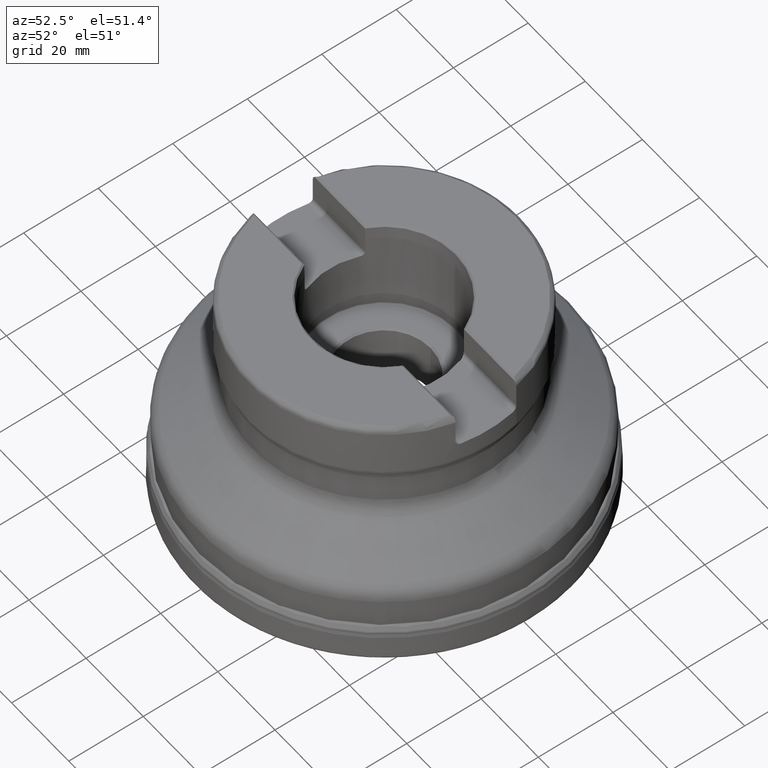
[diagram: clean part render]
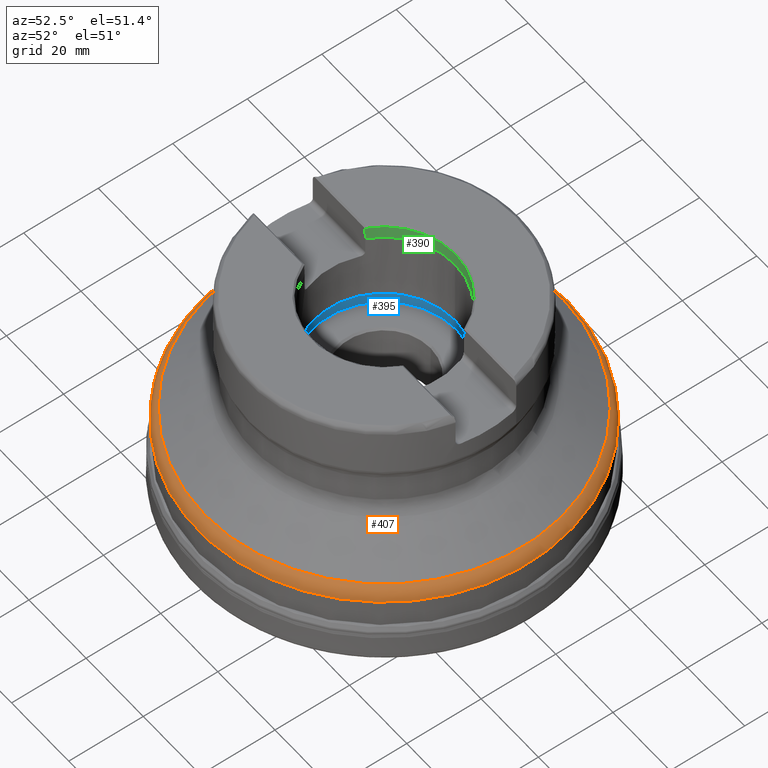
[diagram: same view with three faces highlighted in distinct colors, each labeled with its STEP entity id]
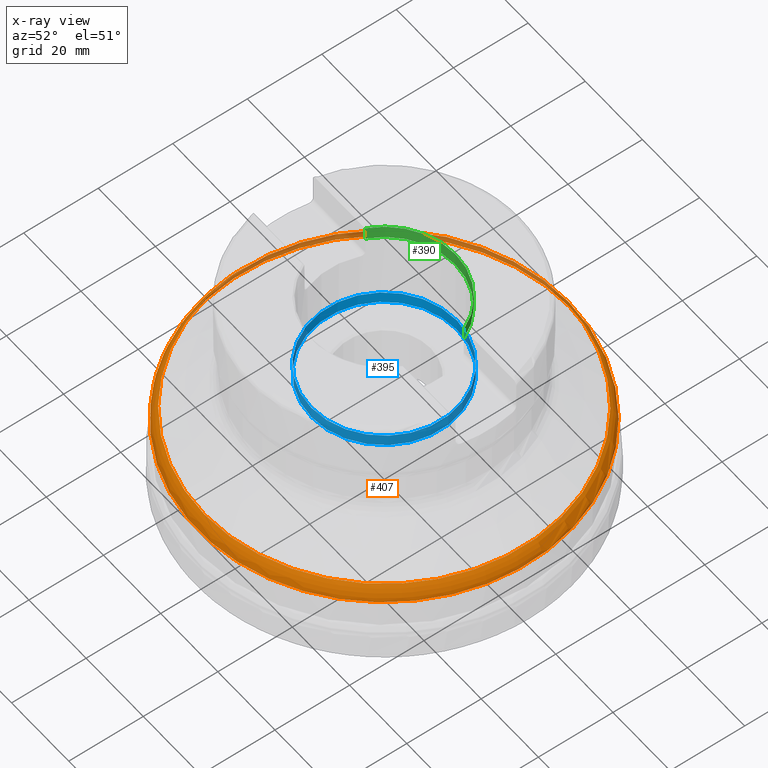
[diagram: x-ray of the same camera — body ghosted, the three highlighted faces saturated]
A machine part, auxiliary view with three faces highlighted in distinct colors.
The next image is the same camera in x-ray (body ghosted, the three faces saturated) — at least one of them is partly hidden behind the body in this view.
Their STEP definitions:

[orange] entity #407 — the highlighted toroidal blend (fillet) surface has major radius 44.9305 mm and minor (blend) radius 5 mm.
#220=FACE_BOUND('',#546,.T.);
#221=FACE_BOUND('',#547,.T.);
#407=ADVANCED_FACE('',(#220,#221),#448,.T.);
#448=TOROIDAL_SURFACE('',#1288,44.9304962185354,5.);
#546=EDGE_LOOP('',(#845));
#547=EDGE_LOOP('',(#846));
#618=CIRCLE('',#1223,48.1444342669681);
#619=CIRCLE('',#1225,49.9276385060247);
#845=ORIENTED_EDGE('',*,*,#1052,.F.);
#846=ORIENTED_EDGE('',*,*,#1053,.F.);
#945=VERTEX_POINT('',#2075);
#946=VERTEX_POINT('',#2078);
#1052=EDGE_CURVE('',#945,#945,#618,.T.);
#1053=EDGE_CURVE('',#946,#946,#619,.T.);
#1223=AXIS2_PLACEMENT_3D('',#2074,#1388,#1389);
#1225=AXIS2_PLACEMENT_3D('',#2077,#1392,#1393);
#1288=AXIS2_PLACEMENT_3D('',#2286,#1530,#1531);
#1388=DIRECTION('',(0.,1.17145536458252E-15,1.));
#1389=DIRECTION('',(0.,-1.,1.15301284720556E-15));
#1392=DIRECTION('',(0.,-1.17145536458252E-15,-1.));
#1393=DIRECTION('',(0.,1.,-1.18132160759204E-15));
#1530=DIRECTION('',(0.,1.17145536458252E-15,1.));
#1531=DIRECTION('',(0.,-1.,1.18125399605615E-15));
#2074=CARTESIAN_POINT('',(0.,2.60828798959362E-14,22.26536382394));
#2075=CARTESIAN_POINT('',(0.,-48.1444342669681,22.26536382394));
#2077=CARTESIAN_POINT('',(0.,2.13979419960202E-14,18.2661180638717));
#2078=CARTESIAN_POINT('',(0.,49.9276385060247,18.2661180638716));
#2286=CARTESIAN_POINT('',(0.,2.15959455339344E-14,18.4351416083451));

[blue] entity #395 — the highlighted cylindrical surface (bore or boss wall) has radius 19.55 mm, axis along (-0, -0, -1).
#167=CYLINDRICAL_SURFACE('',#1274,19.55);
#196=FACE_BOUND('',#522,.T.);
#197=FACE_BOUND('',#523,.T.);
#395=ADVANCED_FACE('',(#196,#197),#167,.F.);
#522=EDGE_LOOP('',(#821));
#523=EDGE_LOOP('',(#822));
#643=CIRCLE('',#1272,19.55);
#644=CIRCLE('',#1273,19.55);
#821=ORIENTED_EDGE('',*,*,#1097,.T.);
#822=ORIENTED_EDGE('',*,*,#1098,.T.);
#978=VERTEX_POINT('',#2267);
#979=VERTEX_POINT('',#2269);
#1097=EDGE_CURVE('',#978,#978,#643,.T.);
#1098=EDGE_CURVE('',#979,#979,#644,.T.);
#1272=AXIS2_PLACEMENT_3D('',#2266,#1498,#1499);
#1273=AXIS2_PLACEMENT_3D('',#2268,#1500,#1501);
#1274=AXIS2_PLACEMENT_3D('',#2270,#1502,#1503);
#1498=DIRECTION('',(4.47319432837584E-16,1.56003342320133E-15,1.));
#1499=DIRECTION('',(1.08268785724004E-15,-1.,1.41972253788383E-15));
#1500=DIRECTION('',(-4.47319432837584E-16,-1.56003342320133E-15,-1.));
#1501=DIRECTION('',(-1.08268785724004E-15,1.,-1.41972253788383E-15));
#1502=DIRECTION('',(-4.47319432837584E-16,-1.56003342320133E-15,-1.));
#1503=DIRECTION('',(-1.08268785724004E-15,1.,-1.56003342320133E-15));
#2266=CARTESIAN_POINT('',(1.65512663344235E-14,5.77227966918723E-14,37.001));
#2267=CARTESIAN_POINT('',(3.77178139434663E-14,-19.5499999999999,37.001));
#2268=CARTESIAN_POINT('',(1.51198441493432E-14,5.27306897376281E-14,33.801));
#2269=CARTESIAN_POINT('',(-6.04670345969965E-15,19.5500000000001,33.801));
#2270=CARTESIAN_POINT('',(0.,0.,0.));

[green] entity #390 — the highlighted conical surface has half-angle 1.5 deg.
#281=CONICAL_SURFACE('',#1261,19.05,1.5);
#303=ELLIPSE('',#1201,26.7835999634305,18.9323708317608);
#304=ELLIPSE('',#1206,26.7835999634305,18.9323708317608);
#390=ADVANCED_FACE('',(#470),#281,.F.);
#470=FACE_OUTER_BOUND('',#514,.T.);
#514=EDGE_LOOP('',(#803,#804,#805,#806,#807,#808));
#609=CIRCLE('',#1204,19.139037517292);
#636=CIRCLE('',#1259,19.05);
#803=ORIENTED_EDGE('',*,*,#1082,.T.);
#804=ORIENTED_EDGE('',*,*,#1026,.T.);
#805=ORIENTED_EDGE('',*,*,#1024,.T.);
#806=ORIENTED_EDGE('',*,*,#1021,.T.);
#807=ORIENTED_EDGE('',*,*,#1080,.T.);
#808=ORIENTED_EDGE('',*,*,#1090,.F.);
#922=VERTEX_POINT('',#1941);
#923=VERTEX_POINT('',#1944);
#925=VERTEX_POINT('',#1952);
#926=VERTEX_POINT('',#1958);
#967=VERTEX_POINT('',#2211);
#968=VERTEX_POINT('',#2221);
#1021=EDGE_CURVE('',#922,#923,#303,.T.);
#1024=EDGE_CURVE('',#925,#922,#609,.T.);
#1026=EDGE_CURVE('',#926,#925,#304,.T.);
#1080=EDGE_CURVE('',#923,#967,#1169,.T.);
#1082=EDGE_CURVE('',#968,#926,#1170,.T.);
#1090=EDGE_CURVE('',#968,#967,#636,.T.);
#1169=B_SPLINE_CURVE_WITH_KNOTS('',3,(#2204,#2205,#2206,#2207,#2208,#2209,
#2210),.UNSPECIFIED.,.F.,.F.,(4,3,4),(0.,0.437517291987116,1.),
 .UNSPECIFIED.);
#1170=B_SPLINE_CURVE_WITH_KNOTS('',3,(#2214,#2215,#2216,#2217,#2218,#2219,
#2220),.UNSPECIFIED.,.F.,.F.,(4,3,4),(0.,0.562482708012884,1.),
 .UNSPECIFIED.);
#1201=AXIS2_PLACEMENT_3D('',#1945,#1334,#1335);
#1204=AXIS2_PLACEMENT_3D('',#1954,#1340,#1341);
#1206=AXIS2_PLACEMENT_3D('',#1957,#1345,#1346);
#1259=AXIS2_PLACEMENT_3D('',#2247,#1472,#1473);
#1261=AXIS2_PLACEMENT_3D('',#2249,#1476,#1477);
#1334=DIRECTION('',(7.65575925762769E-16,-0.707106781186549,0.707106781186546));
#1335=DIRECTION('',(-1.32970717130814E-16,0.707106781186546,0.707106781186549));
#1340=DIRECTION('',(-1.20284475693078E-17,1.78581628509934E-15,1.));
#1341=DIRECTION('',(0.,1.,-1.81275936620062E-15));
#1345=DIRECTION('',(7.65575925762769E-16,-0.707106781186549,0.707106781186546));
#1346=DIRECTION('',(-1.32970717130814E-16,0.707106781186546,0.707106781186549));
#1472=DIRECTION('',(4.47319432837584E-16,1.56003342320133E-15,1.));
#1473=DIRECTION('',(-1.08268785724004E-15,1.,-1.45698559662094E-15));
#1476=DIRECTION('',(4.47319432837584E-16,1.56003342320133E-15,1.));
#1477=DIRECTION('',(1.08268785724004E-15,-1.,-1.38054101627287E-15));
#1941=CARTESIAN_POINT('',(-17.3216572473998,8.14020560501474,59.9252056050148));
#1944=CARTESIAN_POINT('',(-17.321747919908,8.14000000000008,59.925));
#1945=CARTESIAN_POINT('',(2.3071177385148E-14,0.495931637655981,52.2809316376559));
#1952=CARTESIAN_POINT('',(17.3216572473999,8.14020560501478,59.9252056050148));
#1954=CARTESIAN_POINT('',(2.68057089839108E-14,9.34853236360346E-14,59.9252056050148));
#1957=CARTESIAN_POINT('',(2.3071177385148E-14,0.495931637655981,52.2809316376559));
#1958=CARTESIAN_POINT('',(17.3217479199081,8.14000000000011,59.925));
#2204=CARTESIAN_POINT('',(-17.321747919908,8.14000000000008,59.925));
#2205=CARTESIAN_POINT('',(-17.3074013132064,8.14000000000008,59.4291468546372));
#2206=CARTESIAN_POINT('',(-17.2930514851347,8.14000000000007,58.9332938024682));
#2207=CARTESIAN_POINT('',(-17.2786984115605,8.14000000000007,58.4374408442548));
#2208=CARTESIAN_POINT('',(-17.260245756462,8.14000000000007,57.7999604070386));
#2209=CARTESIAN_POINT('',(-17.241787737125,8.14000000000007,57.1624801250739));
#2210=CARTESIAN_POINT('',(-17.2233243016556,8.14000000000007,56.525));
#2211=CARTESIAN_POINT('',(-17.2233243016556,8.14000000000007,56.525));
#2214=CARTESIAN_POINT('',(17.2233243016556,8.14000000000011,56.525));
#2215=CARTESIAN_POINT('',(17.241787737125,8.14000000000011,57.1624801250738));
#2216=CARTESIAN_POINT('',(17.260245756462,8.14000000000011,57.7999604070386));
#2217=CARTESIAN_POINT('',(17.2786984115605,8.14000000000011,58.4374408442548));
#2218=CARTESIAN_POINT('',(17.2930514851348,8.14000000000011,58.9332938024682));
#2219=CARTESIAN_POINT('',(17.3074013132064,8.14000000000011,59.4291468546372));
#2220=CARTESIAN_POINT('',(17.3217479199081,8.14000000000011,59.925));
#2221=CARTESIAN_POINT('',(17.2233243016556,8.14000000000011,56.525));
#2247=CARTESIAN_POINT('',(2.52847309411445E-14,8.8180889246455E-14,56.525));
#2249=CARTESIAN_POINT('',(2.52847309411445E-14,8.8180889246455E-14,56.525));